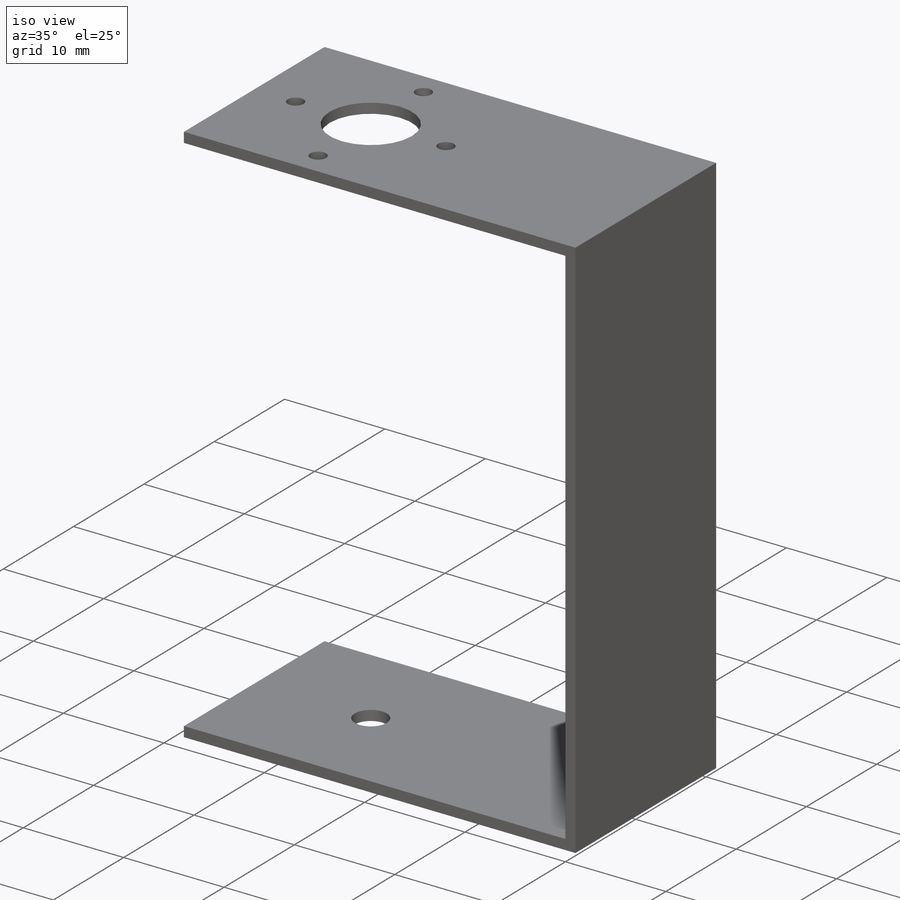
[diagram: iso view]
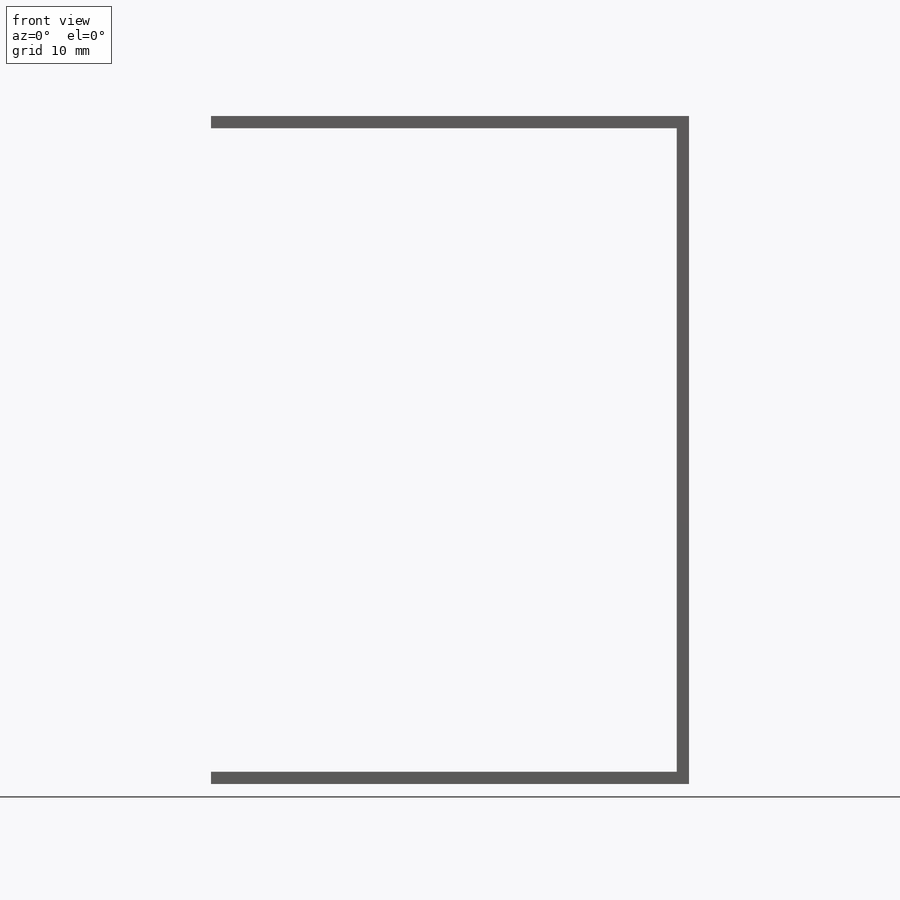
[diagram: front view]
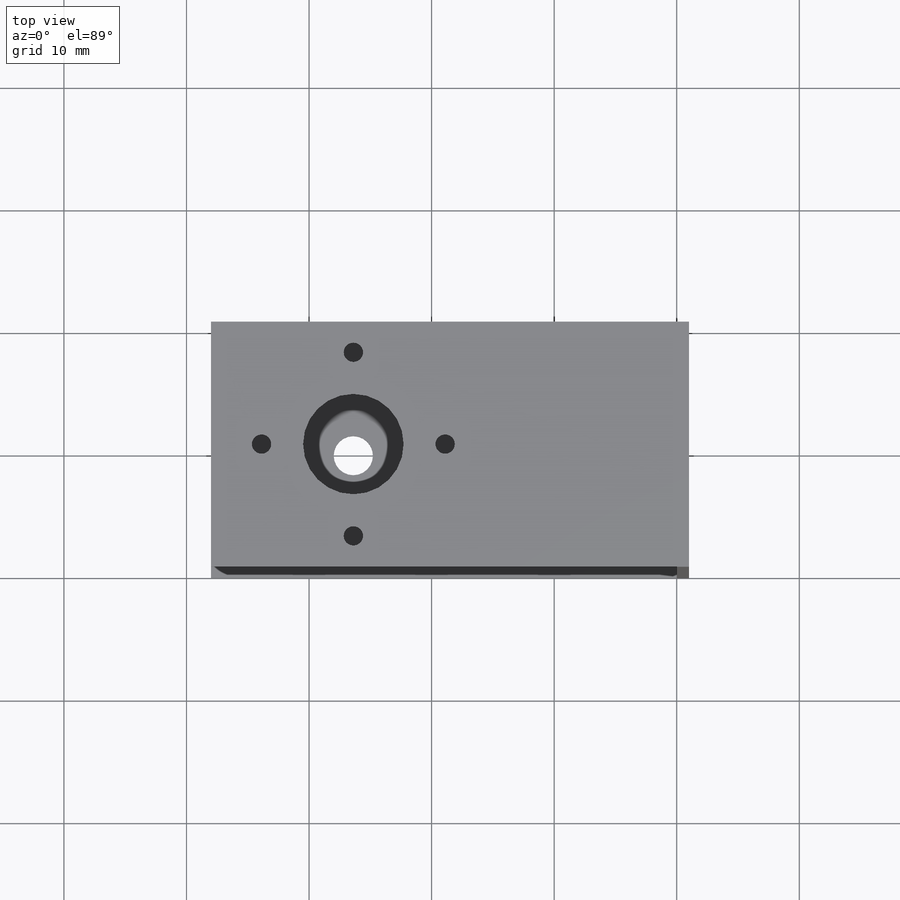
[diagram: top view]
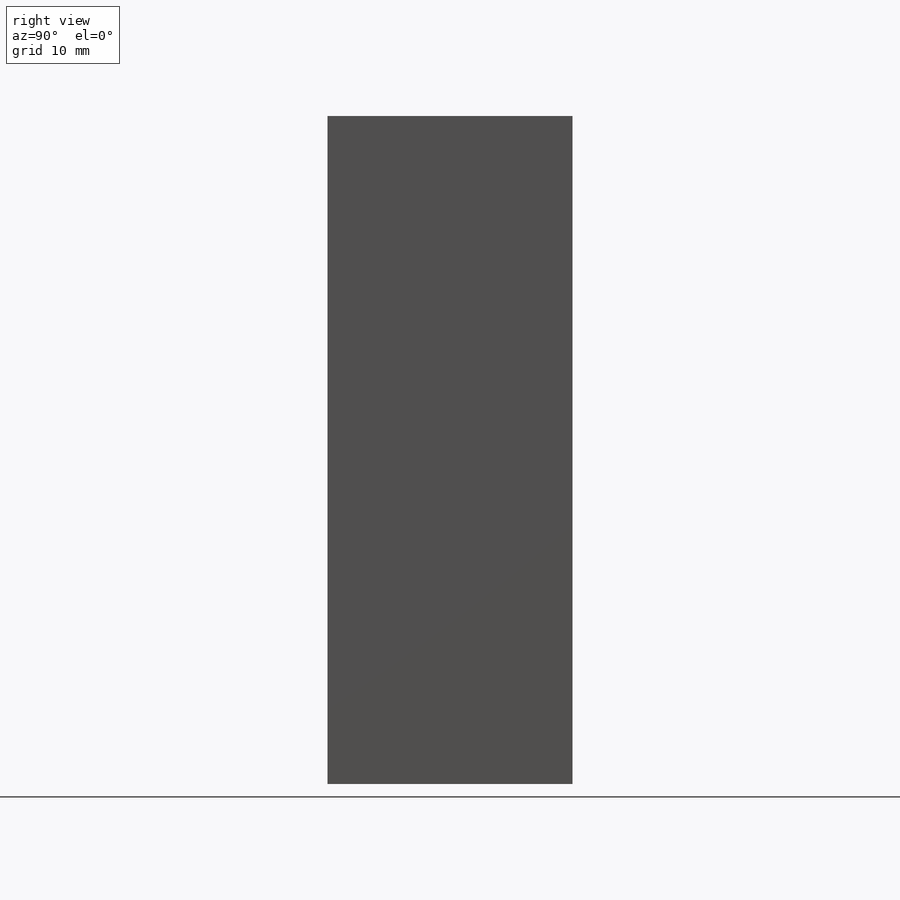
[diagram: right view]
SOLIDWORKS PART (.sldprt)
format: sldprt  version: not decoded by parser v0  size: 197,120 bytes
history: native  units: mm
features: sketch x9, cut_extrude x6, plane x3, extrude x3, material x1 + 2 further entries (+8 scaffold rows collapsed)
feature tree (32):
  scaffold x8  (default folders/planes/origin — collapsed)
  material  "材料 <指定なし>"
  "ｻｰﾌｪｽ ﾎﾞﾃﾞｨ"
  "ｿﾘｯﾄﾞ ﾎﾞﾃﾞｨ"
  plane  "正面"
  plane  "平面"
  plane  "右側面"
  sketch  "ｽｹｯﾁ1"
  extrude  "ﾎﾞｽ - 押し出し1"  Depth=1mm
  sketch  "ｽｹｯﾁ2"
  extrude  "ﾎﾞｽ - 押し出し2"  Depth=38mm
  sketch  "ｽｹｯﾁ3"
  extrude  "ﾎﾞｽ - 押し出し3"  Depth=38mm
  sketch  "ｽｹｯﾁ4"  dims[D1=~3.479346mm]
  cut_extrude  "ｶｯﾄ - 押し出し1"  Depth=1mm
  sketch  "ｽｹｯﾁ5"  dims[D1=~0.786407mm]
  cut_extrude  "ｶｯﾄ - 押し出し2"  Depth=1mm
  sketch  "ｽｹｯﾁ6"  dims[D1=~0.601188mm]
  cut_extrude  "ｶｯﾄ - 押し出し3"  Depth=1mm
  sketch  "ｽｹｯﾁ7"  dims[D1=~0.729055mm]
  cut_extrude  "ｶｯﾄ - 押し出し4"  Depth=1mm
  sketch  "ｽｹｯﾁ8"  dims[D1=~1.09381mm]
  cut_extrude  "ｶｯﾄ - 押し出し5"  Depth=1mm
  sketch  "ｽｹｯﾁ9"  dims[D1=1.5mm]
  cut_extrude  "ｶｯﾄ - 押し出し6"  Depth=1mm
decode coverage: 15 of 18 modeling features carry decoded parameters; 2 rows unclassified (native names shown)
note: ~ marks probable driven/reference dimensions
note: suppression state not decoded; provenance and decode notes live in map.json
